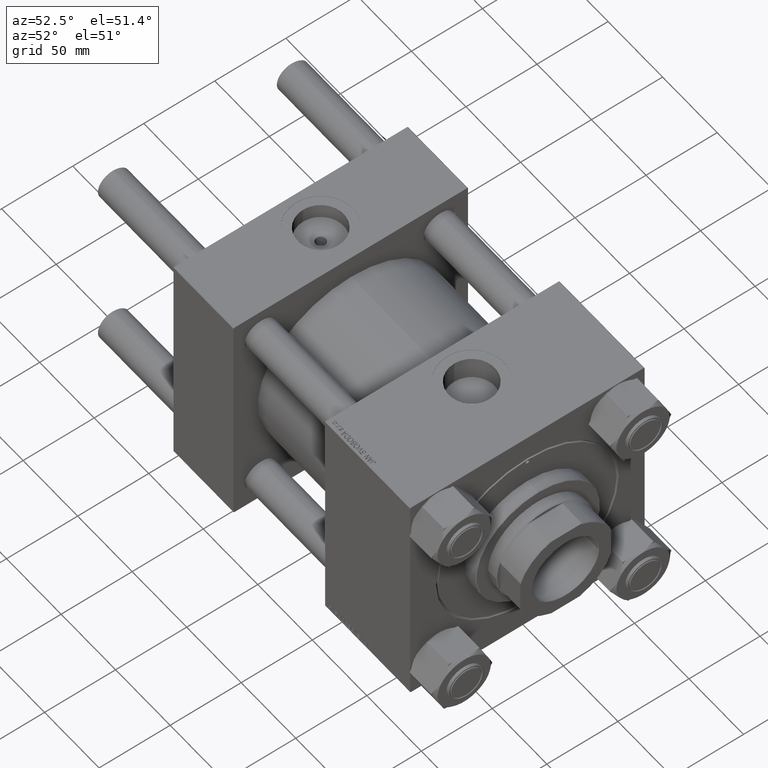
[diagram: clean part render]
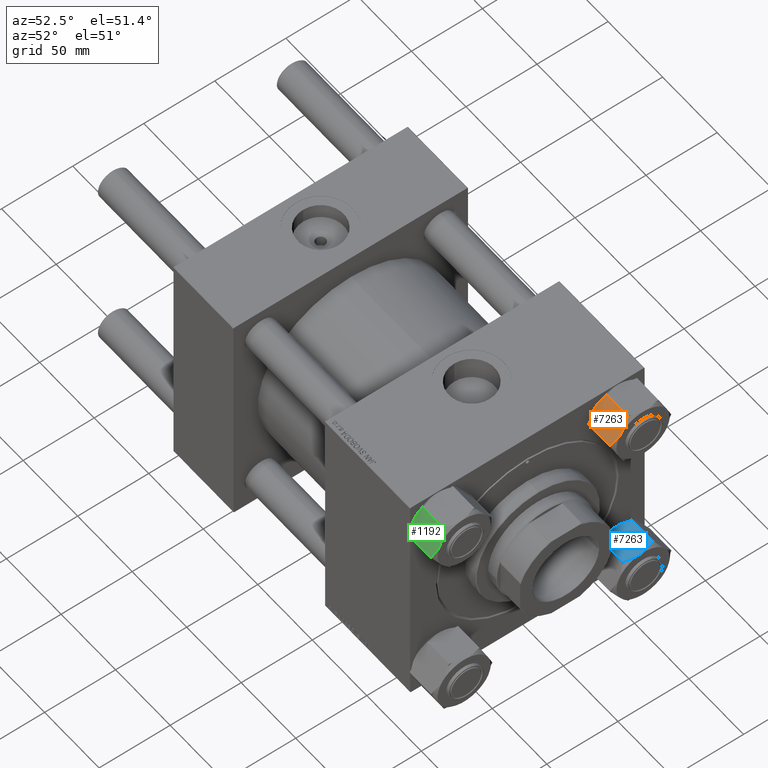
[diagram: same view with three faces highlighted in distinct colors, each labeled with its STEP entity id]
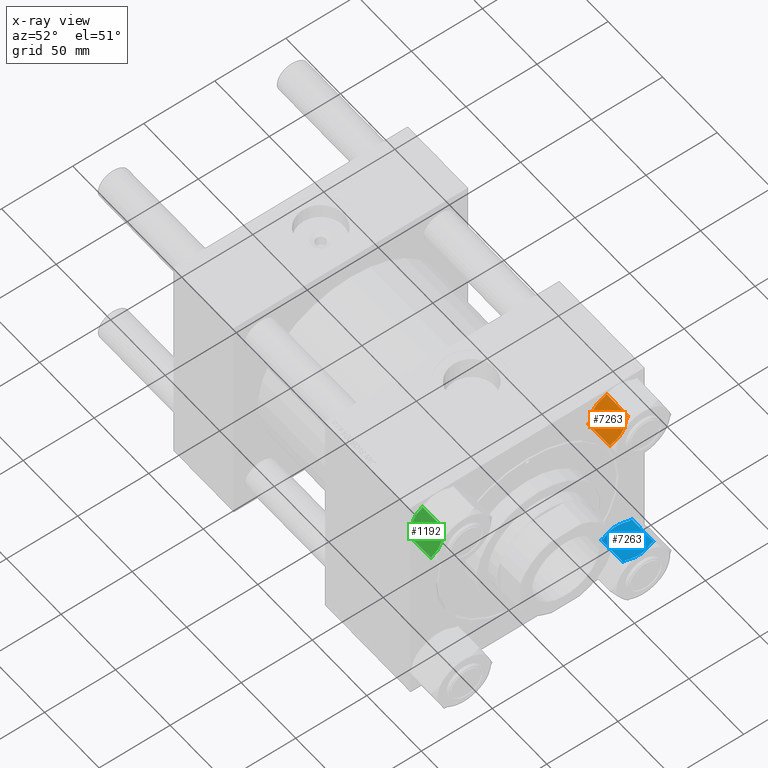
[diagram: x-ray of the same camera — body ghosted, the three highlighted faces saturated]
A machine part, auxiliary view with three faces highlighted in distinct colors.
The next image is the same camera in x-ray (body ghosted, the three faces saturated) — at least one of them is partly hidden behind the body in this view.
Their STEP definitions:

[orange] entity #7263 — the highlighted planar face has unit normal (0, 0.8135, -0.5816).
#313 = DIRECTION ( 'NONE',  ( 0.5000000000000004441, -0.8660254037844384856, 0.000000000000000000 ) ) ;
#1204 = VECTOR ( 'NONE', #22598, 1000.000000000000000 ) ;
#1591 = CARTESIAN_POINT ( 'NONE',  ( -16.60104632518791590, -8.693082765609052132, -0.01197337667082346013 ) ) ;
#1781 = LINE ( 'NONE', #17321, #11307 ) ;
#1925 = ORIENTED_EDGE ( 'NONE', *, *, #38229, .F. ) ;
#2962 = EDGE_CURVE ( 'NONE', #13458, #21548, #1781, .T. ) ;
#3219 = CARTESIAN_POINT ( 'NONE',  ( -14.68383736039109344, -12.01378610136367087, -23.76617792281659902 ) ) ;
#3776 = CARTESIAN_POINT ( 'NONE',  ( -21.62000000000000099, -1.258445848729200031E-15, -2.000000000000001776 ) ) ;
#4390 = CARTESIAN_POINT ( 'NONE',  ( -10.80999999999998096, -18.72346922981957817, -22.00000000000000000 ) ) ;
#4602 = VERTEX_POINT ( 'NONE', #39308 ) ;
#5158 = CARTESIAN_POINT ( 'NONE',  ( -16.98310883762006895, -8.031331082409149502, -23.99999999999999645 ) ) ;
#5585 = CARTESIAN_POINT ( 'NONE',  ( -13.58342913161265386, -13.91974906267479817, -0.7123487060405540028 ) ) ;
#5741 = DIRECTION ( 'NONE',  ( -0.5000000000000003331, 0.8660254037844383745, 0.000000000000000000 ) ) ;
#5953 = VERTEX_POINT ( 'NONE', #41405 ) ;
#7037 = CARTESIAN_POINT ( 'NONE',  ( -21.62000000000000099, -1.258445848729200031E-15, -22.00000000000000000 ) ) ;
#7194 = ORIENTED_EDGE ( 'NONE', *, *, #20094, .T. ) ;
#7263 = ADVANCED_FACE ( 'NONE', ( #41691 ), #49099, .F. ) ;
#7764 = CARTESIAN_POINT ( 'NONE',  ( -20.65611126068911219, -1.669504269329982415, -22.00000000000000000 ) ) ;
#8715 = LINE ( 'NONE', #31696, #45926 ) ;
#9232 = DIRECTION ( 'NONE',  ( 0.5000000000000004441, -0.8660254037844384856, 0.000000000000000000 ) ) ;
#9660 = CARTESIAN_POINT ( 'NONE',  ( -16.21499999999999275, -9.361734614909785535, 0.000000000000000000 ) ) ;
#10194 = DIRECTION ( 'NONE',  ( -0.5000000000000004441, 0.8660254037844384856, 0.000000000000000000 ) ) ;
#10196 = VERTEX_POINT ( 'NONE', #7764 ) ;
#10565 = DIRECTION ( 'NONE',  ( 0.8660254037844384856, 0.5000000000000004441, 0.000000000000000000 ) ) ;
#11307 = VECTOR ( 'NONE', #33649, 999.9999999999998863 ) ;
#11797 = EDGE_CURVE ( 'NONE', #12653, #34705, #24862, .T. ) ;
#12596 = VERTEX_POINT ( 'NONE', #35512 ) ;
#12653 = VERTEX_POINT ( 'NONE', #27863 ) ;
#13059 = CARTESIAN_POINT ( 'NONE',  ( -20.65611126068911219, -1.669504269329982415, -22.00000000000000000 ) ) ;
#13450 = EDGE_CURVE ( 'NONE', #34705, #5953, #8715, .T. ) ;
#13458 = VERTEX_POINT ( 'NONE', #4390 ) ;
#14232 = CARTESIAN_POINT ( 'NONE',  ( -13.21634051119548126, -14.55556520411771437, -0.9250850388961004978 ) ) ;
#14439 = CARTESIAN_POINT ( 'NONE',  ( -15.25296234352181557, -11.02803271472448010, -23.90516550165011367 ) ) ;
#14676 = CARTESIAN_POINT ( 'NONE',  ( -11.77388873931088220, -17.05396496048959420, -2.000000000000000000 ) ) ;
#15168 = ORIENTED_EDGE ( 'NONE', *, *, #33208, .F. ) ;
#16627 = CARTESIAN_POINT ( 'NONE',  ( -18.84657086838732098, -4.803720167144771125, -23.28765129395944555 ) ) ;
#16883 = CARTESIAN_POINT ( 'NONE',  ( -19.22845374672205665, -4.142279619328383511, -0.8936198542777903375 ) ) ;
#16884 = CARTESIAN_POINT ( 'NONE',  ( -19.94246781890513986, -2.905570968988129277, -22.58212083167677164 ) ) ;
#17321 = CARTESIAN_POINT ( 'NONE',  ( -10.80999999999998096, -18.72346922981957817, -22.00000000000000000 ) ) ;
#19016 = CARTESIAN_POINT ( 'NONE',  ( -15.82895367481207138, -10.03038646421052427, -23.98802662332916924 ) ) ;
#20094 = EDGE_CURVE ( 'NONE', #13458, #5953, #34334, .T. ) ;
#20727 = CARTESIAN_POINT ( 'NONE',  ( -20.30204076991166673, -2.282772348817363461, -22.30351413196914834 ) ) ;
#20774 = CARTESIAN_POINT ( 'NONE',  ( -11.77388873931088220, -17.05396496048959420, -22.00000000000000000 ) ) ;
#21548 = VERTEX_POINT ( 'NONE', #20774 ) ;
#21561 = ORIENTED_EDGE ( 'NONE', *, *, #13450, .F. ) ;
#22598 = DIRECTION ( 'NONE',  ( -0.000000000000000000, -0.000000000000000000, 1.000000000000000000 ) ) ;
#23117 = CARTESIAN_POINT ( 'NONE',  ( -16.02284832181302932, -9.694551084289219745, -23.99999999999998934 ) ) ;
#24862 = B_SPLINE_CURVE_WITH_KNOTS ( 'NONE', 3,
 ( #9660, #24991, #33634, #5585, #14232, #36701, #25235, #29810 ),
 .UNSPECIFIED., .F., .F.,
 ( 4, 2, 2, 4 ),
 ( 0.009109849294687024507, 0.01366157320126709478, 0.01593743515455713078, 0.01821329710784716852 ),
 .UNSPECIFIED. ) ;
#24991 = CARTESIAN_POINT ( 'NONE',  ( -15.44689116237992010, -10.69213814741042690, 1.084202172485503325E-16 ) ) ;
#25064 = CARTESIAN_POINT ( 'NONE',  ( -18.12021770021051736, -6.061800758665626176, -0.3703068632035674823 ) ) ;
#25235 = CARTESIAN_POINT ( 'NONE',  ( -12.12795923008832766, -16.44069688100221782, -1.696485868030862987 ) ) ;
#26434 = CARTESIAN_POINT ( 'NONE',  ( -10.80999999999998096, -18.72346922981957817, -24.00000000000000000 ) ) ;
#27863 = CARTESIAN_POINT ( 'NONE',  ( -16.21499999999999275, -9.361734614909785535, 0.000000000000000000 ) ) ;
#27994 = EDGE_CURVE ( 'NONE', #10196, #40149, #36742, .T. ) ;
#28582 = AXIS2_PLACEMENT_3D ( 'NONE', #45267, #10565, #5741 ) ;
#28894 = CARTESIAN_POINT ( 'NONE',  ( -17.17703765647816994, -7.695436515095090080, -0.09483449834989436666 ) ) ;
#29142 = CARTESIAN_POINT ( 'NONE',  ( -16.98598932500587111, -8.026341931906371130, -0.05945867712356565221 ) ) ;
#29810 = CARTESIAN_POINT ( 'NONE',  ( -11.77388873931088220, -17.05396496048959420, -2.000000000000000000 ) ) ;
#30480 = LINE ( 'NONE', #46036, #39350 ) ;
#30831 = B_SPLINE_CURVE_WITH_KNOTS ( 'NONE', 3,
 ( #45818, #45319, #33845, #38169, #3219, #14439, #37921, #19016, #23117, #34090 ),
 .UNSPECIFIED., .F., .F.,
 ( 4, 2, 2, 2, 4 ),
 ( 5.007809737522038475E-07, 0.004555175037830387977, 0.006832512166258704507, 0.007971180730472862339, 0.009109849294687026242 ),
 .UNSPECIFIED. ) ;
#31696 = CARTESIAN_POINT ( 'NONE',  ( -10.80999999999998096, -18.72346922981957817, -2.000000000000001776 ) ) ;
#32467 = CARTESIAN_POINT ( 'NONE',  ( -16.21499999999999275, -9.361734614909785535, -24.00000000000000000 ) ) ;
#32722 = CARTESIAN_POINT ( 'NONE',  ( -10.80999999999998096, -18.72346922981957817, -2.000000000000001776 ) ) ;
#33208 = EDGE_CURVE ( 'NONE', #12596, #12653, #45415, .T. ) ;
#33553 = EDGE_CURVE ( 'NONE', #21548, #4602, #30831, .T. ) ;
#33634 = CARTESIAN_POINT ( 'NONE',  ( -14.69400019531144785, -11.99618355493267785, -0.1908188403547944889 ) ) ;
#33649 = DIRECTION ( 'NONE',  ( -0.5000000000000004441, 0.8660254037844384856, 0.000000000000000000 ) ) ;
#33845 = CARTESIAN_POINT ( 'NONE',  ( -13.20154625327792530, -14.58118961049118845, -23.10638014572221621 ) ) ;
#33927 = CARTESIAN_POINT ( 'NONE',  ( -10.80999999999998096, -18.72346922981957817, -22.00000000000000000 ) ) ;
#34090 = CARTESIAN_POINT ( 'NONE',  ( -16.21499999999999275, -9.361734614909785535, -24.00000000000000000 ) ) ;
#34334 = LINE ( 'NONE', #26434, #1204 ) ;
#34705 = VERTEX_POINT ( 'NONE', #14676 ) ;
#35054 = DIRECTION ( 'NONE',  ( -0.000000000000000000, -0.000000000000000000, 1.000000000000000000 ) ) ;
#35512 = CARTESIAN_POINT ( 'NONE',  ( -20.65611126068911219, -1.669504269329982415, -2.000000000000000000 ) ) ;
#35932 = EDGE_CURVE ( 'NONE', #4602, #10196, #36148, .T. ) ;
#36021 = CARTESIAN_POINT ( 'NONE',  ( -17.73599980468853587, -6.727285674886896771, -23.80918115964520965 ) ) ;
#36148 = B_SPLINE_CURVE_WITH_KNOTS ( 'NONE', 3,
 ( #32467, #5158, #36021, #16627, #47769, #16884, #20727, #13059 ),
 .UNSPECIFIED., .F., .F.,
 ( 4, 2, 2, 4 ),
 ( 0.009109849294687026242, 0.01366157320126709651, 0.01593743515455713078, 0.01821329710784716852 ),
 .UNSPECIFIED. ) ;
#36698 = ORIENTED_EDGE ( 'NONE', *, *, #2962, .F. ) ;
#36701 = CARTESIAN_POINT ( 'NONE',  ( -12.48753218109484742, -15.81789826083144668, -1.417879168323226580 ) ) ;
#36742 = LINE ( 'NONE', #33927, #45481 ) ;
#36809 = ORIENTED_EDGE ( 'NONE', *, *, #35932, .F. ) ;
#36950 = ORIENTED_EDGE ( 'NONE', *, *, #42345, .F. ) ;
#37136 = ORIENTED_EDGE ( 'NONE', *, *, #33553, .F. ) ;
#37921 = CARTESIAN_POINT ( 'NONE',  ( -15.44401067499411262, -10.69712729791320527, -23.94054132287643455 ) ) ;
#38169 = CARTESIAN_POINT ( 'NONE',  ( -14.30978229978946636, -12.66166847115395022, -23.62969313679642980 ) ) ;
#38229 = EDGE_CURVE ( 'NONE', #49106, #12596, #48023, .T. ) ;
#39308 = CARTESIAN_POINT ( 'NONE',  ( -16.21499999999999275, -9.361734614909785535, -24.00000000000000000 ) ) ;
#39350 = VECTOR ( 'NONE', #35054, 1000.000000000000000 ) ;
#40149 = VERTEX_POINT ( 'NONE', #7037 ) ;
#40863 = CARTESIAN_POINT ( 'NONE',  ( -17.74616263960889739, -6.709683128455900203, -0.2338220771833977030 ) ) ;
#41405 = CARTESIAN_POINT ( 'NONE',  ( -10.80999999999998096, -18.72346922981957817, -2.000000000000001776 ) ) ;
#41691 = FACE_OUTER_BOUND ( 'NONE', #48563, .T. ) ;
#41960 = ORIENTED_EDGE ( 'NONE', *, *, #11797, .F. ) ;
#42345 = EDGE_CURVE ( 'NONE', #40149, #49106, #30480, .T. ) ;
#43935 = CARTESIAN_POINT ( 'NONE',  ( -19.94878361794603450, -2.894631684158906815, -1.393668941363774172 ) ) ;
#44687 = CARTESIAN_POINT ( 'NONE',  ( -16.21499999999999275, -9.361734614909785535, 0.000000000000000000 ) ) ;
#45267 = CARTESIAN_POINT ( 'NONE',  ( -10.80999999999998096, -18.72346922981957817, -24.00000000000000000 ) ) ;
#45319 = CARTESIAN_POINT ( 'NONE',  ( -12.48121638205395278, -15.82883754566066514, -22.60633105863622916 ) ) ;
#45415 = B_SPLINE_CURVE_WITH_KNOTS ( 'NONE', 3,
 ( #47768, #43935, #16883, #25064, #40863, #28894, #29142, #1591, #47507, #44687 ),
 .UNSPECIFIED., .F., .F.,
 ( 4, 2, 2, 2, 4 ),
 ( 5.007809737505383690E-07, 0.004555175037830387109, 0.006832512166258706242, 0.007971180730472865808, 0.009109849294687024507 ),
 .UNSPECIFIED. ) ;
#45481 = VECTOR ( 'NONE', #10194, 999.9999999999998863 ) ;
#45818 = CARTESIAN_POINT ( 'NONE',  ( -11.77388873931088220, -17.05396496048959420, -22.00000000000000000 ) ) ;
#45926 = VECTOR ( 'NONE', #313, 999.9999999999998863 ) ;
#46036 = CARTESIAN_POINT ( 'NONE',  ( -21.62000000000000099, -1.258445848729200031E-15, -24.00000000000000000 ) ) ;
#47507 = CARTESIAN_POINT ( 'NONE',  ( -16.40715167818695619, -9.028918145530353101, -3.049318610115475674E-17 ) ) ;
#47768 = CARTESIAN_POINT ( 'NONE',  ( -20.65611126068911219, -1.669504269329982415, -2.000000000000000000 ) ) ;
#47769 = CARTESIAN_POINT ( 'NONE',  ( -19.21365948880450247, -4.167904025701862913, -23.07491496110390017 ) ) ;
#48023 = LINE ( 'NONE', #32722, #48941 ) ;
#48563 = EDGE_LOOP ( 'NONE', ( #36698, #7194, #21561, #41960, #15168, #1925, #36950, #50174, #36809, #37136 ) ) ;
#48941 = VECTOR ( 'NONE', #9232, 999.9999999999998863 ) ;
#49099 = PLANE ( 'NONE',  #28582 ) ;
#49106 = VERTEX_POINT ( 'NONE', #3776 ) ;
#50174 = ORIENTED_EDGE ( 'NONE', *, *, #27994, .F. ) ;

[blue] entity #7263 — the highlighted planar face has unit normal (-0, 0.097, -0.9953).
#313 = DIRECTION ( 'NONE',  ( 0.5000000000000004441, -0.8660254037844384856, 0.000000000000000000 ) ) ;
#1204 = VECTOR ( 'NONE', #22598, 1000.000000000000000 ) ;
#1591 = CARTESIAN_POINT ( 'NONE',  ( -16.60104632518791590, -8.693082765609052132, -0.01197337667082346013 ) ) ;
#1781 = LINE ( 'NONE', #17321, #11307 ) ;
#1925 = ORIENTED_EDGE ( 'NONE', *, *, #38229, .F. ) ;
#2962 = EDGE_CURVE ( 'NONE', #13458, #21548, #1781, .T. ) ;
#3219 = CARTESIAN_POINT ( 'NONE',  ( -14.68383736039109344, -12.01378610136367087, -23.76617792281659902 ) ) ;
#3776 = CARTESIAN_POINT ( 'NONE',  ( -21.62000000000000099, -1.258445848729200031E-15, -2.000000000000001776 ) ) ;
#4390 = CARTESIAN_POINT ( 'NONE',  ( -10.80999999999998096, -18.72346922981957817, -22.00000000000000000 ) ) ;
#4602 = VERTEX_POINT ( 'NONE', #39308 ) ;
#5158 = CARTESIAN_POINT ( 'NONE',  ( -16.98310883762006895, -8.031331082409149502, -23.99999999999999645 ) ) ;
#5585 = CARTESIAN_POINT ( 'NONE',  ( -13.58342913161265386, -13.91974906267479817, -0.7123487060405540028 ) ) ;
#5741 = DIRECTION ( 'NONE',  ( -0.5000000000000003331, 0.8660254037844383745, 0.000000000000000000 ) ) ;
#5953 = VERTEX_POINT ( 'NONE', #41405 ) ;
#7037 = CARTESIAN_POINT ( 'NONE',  ( -21.62000000000000099, -1.258445848729200031E-15, -22.00000000000000000 ) ) ;
#7194 = ORIENTED_EDGE ( 'NONE', *, *, #20094, .T. ) ;
#7263 = ADVANCED_FACE ( 'NONE', ( #41691 ), #49099, .F. ) ;
#7764 = CARTESIAN_POINT ( 'NONE',  ( -20.65611126068911219, -1.669504269329982415, -22.00000000000000000 ) ) ;
#8715 = LINE ( 'NONE', #31696, #45926 ) ;
#9232 = DIRECTION ( 'NONE',  ( 0.5000000000000004441, -0.8660254037844384856, 0.000000000000000000 ) ) ;
#9660 = CARTESIAN_POINT ( 'NONE',  ( -16.21499999999999275, -9.361734614909785535, 0.000000000000000000 ) ) ;
#10194 = DIRECTION ( 'NONE',  ( -0.5000000000000004441, 0.8660254037844384856, 0.000000000000000000 ) ) ;
#10196 = VERTEX_POINT ( 'NONE', #7764 ) ;
#10565 = DIRECTION ( 'NONE',  ( 0.8660254037844384856, 0.5000000000000004441, 0.000000000000000000 ) ) ;
#11307 = VECTOR ( 'NONE', #33649, 999.9999999999998863 ) ;
#11797 = EDGE_CURVE ( 'NONE', #12653, #34705, #24862, .T. ) ;
#12596 = VERTEX_POINT ( 'NONE', #35512 ) ;
#12653 = VERTEX_POINT ( 'NONE', #27863 ) ;
#13059 = CARTESIAN_POINT ( 'NONE',  ( -20.65611126068911219, -1.669504269329982415, -22.00000000000000000 ) ) ;
#13450 = EDGE_CURVE ( 'NONE', #34705, #5953, #8715, .T. ) ;
#13458 = VERTEX_POINT ( 'NONE', #4390 ) ;
#14232 = CARTESIAN_POINT ( 'NONE',  ( -13.21634051119548126, -14.55556520411771437, -0.9250850388961004978 ) ) ;
#14439 = CARTESIAN_POINT ( 'NONE',  ( -15.25296234352181557, -11.02803271472448010, -23.90516550165011367 ) ) ;
#14676 = CARTESIAN_POINT ( 'NONE',  ( -11.77388873931088220, -17.05396496048959420, -2.000000000000000000 ) ) ;
#15168 = ORIENTED_EDGE ( 'NONE', *, *, #33208, .F. ) ;
#16627 = CARTESIAN_POINT ( 'NONE',  ( -18.84657086838732098, -4.803720167144771125, -23.28765129395944555 ) ) ;
#16883 = CARTESIAN_POINT ( 'NONE',  ( -19.22845374672205665, -4.142279619328383511, -0.8936198542777903375 ) ) ;
#16884 = CARTESIAN_POINT ( 'NONE',  ( -19.94246781890513986, -2.905570968988129277, -22.58212083167677164 ) ) ;
#17321 = CARTESIAN_POINT ( 'NONE',  ( -10.80999999999998096, -18.72346922981957817, -22.00000000000000000 ) ) ;
#19016 = CARTESIAN_POINT ( 'NONE',  ( -15.82895367481207138, -10.03038646421052427, -23.98802662332916924 ) ) ;
#20094 = EDGE_CURVE ( 'NONE', #13458, #5953, #34334, .T. ) ;
#20727 = CARTESIAN_POINT ( 'NONE',  ( -20.30204076991166673, -2.282772348817363461, -22.30351413196914834 ) ) ;
#20774 = CARTESIAN_POINT ( 'NONE',  ( -11.77388873931088220, -17.05396496048959420, -22.00000000000000000 ) ) ;
#21548 = VERTEX_POINT ( 'NONE', #20774 ) ;
#21561 = ORIENTED_EDGE ( 'NONE', *, *, #13450, .F. ) ;
#22598 = DIRECTION ( 'NONE',  ( -0.000000000000000000, -0.000000000000000000, 1.000000000000000000 ) ) ;
#23117 = CARTESIAN_POINT ( 'NONE',  ( -16.02284832181302932, -9.694551084289219745, -23.99999999999998934 ) ) ;
#24862 = B_SPLINE_CURVE_WITH_KNOTS ( 'NONE', 3,
 ( #9660, #24991, #33634, #5585, #14232, #36701, #25235, #29810 ),
 .UNSPECIFIED., .F., .F.,
 ( 4, 2, 2, 4 ),
 ( 0.009109849294687024507, 0.01366157320126709478, 0.01593743515455713078, 0.01821329710784716852 ),
 .UNSPECIFIED. ) ;
#24991 = CARTESIAN_POINT ( 'NONE',  ( -15.44689116237992010, -10.69213814741042690, 1.084202172485503325E-16 ) ) ;
#25064 = CARTESIAN_POINT ( 'NONE',  ( -18.12021770021051736, -6.061800758665626176, -0.3703068632035674823 ) ) ;
#25235 = CARTESIAN_POINT ( 'NONE',  ( -12.12795923008832766, -16.44069688100221782, -1.696485868030862987 ) ) ;
#26434 = CARTESIAN_POINT ( 'NONE',  ( -10.80999999999998096, -18.72346922981957817, -24.00000000000000000 ) ) ;
#27863 = CARTESIAN_POINT ( 'NONE',  ( -16.21499999999999275, -9.361734614909785535, 0.000000000000000000 ) ) ;
#27994 = EDGE_CURVE ( 'NONE', #10196, #40149, #36742, .T. ) ;
#28582 = AXIS2_PLACEMENT_3D ( 'NONE', #45267, #10565, #5741 ) ;
#28894 = CARTESIAN_POINT ( 'NONE',  ( -17.17703765647816994, -7.695436515095090080, -0.09483449834989436666 ) ) ;
#29142 = CARTESIAN_POINT ( 'NONE',  ( -16.98598932500587111, -8.026341931906371130, -0.05945867712356565221 ) ) ;
#29810 = CARTESIAN_POINT ( 'NONE',  ( -11.77388873931088220, -17.05396496048959420, -2.000000000000000000 ) ) ;
#30480 = LINE ( 'NONE', #46036, #39350 ) ;
#30831 = B_SPLINE_CURVE_WITH_KNOTS ( 'NONE', 3,
 ( #45818, #45319, #33845, #38169, #3219, #14439, #37921, #19016, #23117, #34090 ),
 .UNSPECIFIED., .F., .F.,
 ( 4, 2, 2, 2, 4 ),
 ( 5.007809737522038475E-07, 0.004555175037830387977, 0.006832512166258704507, 0.007971180730472862339, 0.009109849294687026242 ),
 .UNSPECIFIED. ) ;
#31696 = CARTESIAN_POINT ( 'NONE',  ( -10.80999999999998096, -18.72346922981957817, -2.000000000000001776 ) ) ;
#32467 = CARTESIAN_POINT ( 'NONE',  ( -16.21499999999999275, -9.361734614909785535, -24.00000000000000000 ) ) ;
#32722 = CARTESIAN_POINT ( 'NONE',  ( -10.80999999999998096, -18.72346922981957817, -2.000000000000001776 ) ) ;
#33208 = EDGE_CURVE ( 'NONE', #12596, #12653, #45415, .T. ) ;
#33553 = EDGE_CURVE ( 'NONE', #21548, #4602, #30831, .T. ) ;
#33634 = CARTESIAN_POINT ( 'NONE',  ( -14.69400019531144785, -11.99618355493267785, -0.1908188403547944889 ) ) ;
#33649 = DIRECTION ( 'NONE',  ( -0.5000000000000004441, 0.8660254037844384856, 0.000000000000000000 ) ) ;
#33845 = CARTESIAN_POINT ( 'NONE',  ( -13.20154625327792530, -14.58118961049118845, -23.10638014572221621 ) ) ;
#33927 = CARTESIAN_POINT ( 'NONE',  ( -10.80999999999998096, -18.72346922981957817, -22.00000000000000000 ) ) ;
#34090 = CARTESIAN_POINT ( 'NONE',  ( -16.21499999999999275, -9.361734614909785535, -24.00000000000000000 ) ) ;
#34334 = LINE ( 'NONE', #26434, #1204 ) ;
#34705 = VERTEX_POINT ( 'NONE', #14676 ) ;
#35054 = DIRECTION ( 'NONE',  ( -0.000000000000000000, -0.000000000000000000, 1.000000000000000000 ) ) ;
#35512 = CARTESIAN_POINT ( 'NONE',  ( -20.65611126068911219, -1.669504269329982415, -2.000000000000000000 ) ) ;
#35932 = EDGE_CURVE ( 'NONE', #4602, #10196, #36148, .T. ) ;
#36021 = CARTESIAN_POINT ( 'NONE',  ( -17.73599980468853587, -6.727285674886896771, -23.80918115964520965 ) ) ;
#36148 = B_SPLINE_CURVE_WITH_KNOTS ( 'NONE', 3,
 ( #32467, #5158, #36021, #16627, #47769, #16884, #20727, #13059 ),
 .UNSPECIFIED., .F., .F.,
 ( 4, 2, 2, 4 ),
 ( 0.009109849294687026242, 0.01366157320126709651, 0.01593743515455713078, 0.01821329710784716852 ),
 .UNSPECIFIED. ) ;
#36698 = ORIENTED_EDGE ( 'NONE', *, *, #2962, .F. ) ;
#36701 = CARTESIAN_POINT ( 'NONE',  ( -12.48753218109484742, -15.81789826083144668, -1.417879168323226580 ) ) ;
#36742 = LINE ( 'NONE', #33927, #45481 ) ;
#36809 = ORIENTED_EDGE ( 'NONE', *, *, #35932, .F. ) ;
#36950 = ORIENTED_EDGE ( 'NONE', *, *, #42345, .F. ) ;
#37136 = ORIENTED_EDGE ( 'NONE', *, *, #33553, .F. ) ;
#37921 = CARTESIAN_POINT ( 'NONE',  ( -15.44401067499411262, -10.69712729791320527, -23.94054132287643455 ) ) ;
#38169 = CARTESIAN_POINT ( 'NONE',  ( -14.30978229978946636, -12.66166847115395022, -23.62969313679642980 ) ) ;
#38229 = EDGE_CURVE ( 'NONE', #49106, #12596, #48023, .T. ) ;
#39308 = CARTESIAN_POINT ( 'NONE',  ( -16.21499999999999275, -9.361734614909785535, -24.00000000000000000 ) ) ;
#39350 = VECTOR ( 'NONE', #35054, 1000.000000000000000 ) ;
#40149 = VERTEX_POINT ( 'NONE', #7037 ) ;
#40863 = CARTESIAN_POINT ( 'NONE',  ( -17.74616263960889739, -6.709683128455900203, -0.2338220771833977030 ) ) ;
#41405 = CARTESIAN_POINT ( 'NONE',  ( -10.80999999999998096, -18.72346922981957817, -2.000000000000001776 ) ) ;
#41691 = FACE_OUTER_BOUND ( 'NONE', #48563, .T. ) ;
#41960 = ORIENTED_EDGE ( 'NONE', *, *, #11797, .F. ) ;
#42345 = EDGE_CURVE ( 'NONE', #40149, #49106, #30480, .T. ) ;
#43935 = CARTESIAN_POINT ( 'NONE',  ( -19.94878361794603450, -2.894631684158906815, -1.393668941363774172 ) ) ;
#44687 = CARTESIAN_POINT ( 'NONE',  ( -16.21499999999999275, -9.361734614909785535, 0.000000000000000000 ) ) ;
#45267 = CARTESIAN_POINT ( 'NONE',  ( -10.80999999999998096, -18.72346922981957817, -24.00000000000000000 ) ) ;
#45319 = CARTESIAN_POINT ( 'NONE',  ( -12.48121638205395278, -15.82883754566066514, -22.60633105863622916 ) ) ;
#45415 = B_SPLINE_CURVE_WITH_KNOTS ( 'NONE', 3,
 ( #47768, #43935, #16883, #25064, #40863, #28894, #29142, #1591, #47507, #44687 ),
 .UNSPECIFIED., .F., .F.,
 ( 4, 2, 2, 2, 4 ),
 ( 5.007809737505383690E-07, 0.004555175037830387109, 0.006832512166258706242, 0.007971180730472865808, 0.009109849294687024507 ),
 .UNSPECIFIED. ) ;
#45481 = VECTOR ( 'NONE', #10194, 999.9999999999998863 ) ;
#45818 = CARTESIAN_POINT ( 'NONE',  ( -11.77388873931088220, -17.05396496048959420, -22.00000000000000000 ) ) ;
#45926 = VECTOR ( 'NONE', #313, 999.9999999999998863 ) ;
#46036 = CARTESIAN_POINT ( 'NONE',  ( -21.62000000000000099, -1.258445848729200031E-15, -24.00000000000000000 ) ) ;
#47507 = CARTESIAN_POINT ( 'NONE',  ( -16.40715167818695619, -9.028918145530353101, -3.049318610115475674E-17 ) ) ;
#47768 = CARTESIAN_POINT ( 'NONE',  ( -20.65611126068911219, -1.669504269329982415, -2.000000000000000000 ) ) ;
#47769 = CARTESIAN_POINT ( 'NONE',  ( -19.21365948880450247, -4.167904025701862913, -23.07491496110390017 ) ) ;
#48023 = LINE ( 'NONE', #32722, #48941 ) ;
#48563 = EDGE_LOOP ( 'NONE', ( #36698, #7194, #21561, #41960, #15168, #1925, #36950, #50174, #36809, #37136 ) ) ;
#48941 = VECTOR ( 'NONE', #9232, 999.9999999999998863 ) ;
#49099 = PLANE ( 'NONE',  #28582 ) ;
#49106 = VERTEX_POINT ( 'NONE', #3776 ) ;
#50174 = ORIENTED_EDGE ( 'NONE', *, *, #27994, .F. ) ;

[green] entity #1192 — the highlighted planar face has unit normal (-0, 0.9104, -0.4137).
#148 = DIRECTION ( 'NONE',  ( -0.000000000000000000, -0.000000000000000000, 1.000000000000000000 ) ) ;
#1192 = ADVANCED_FACE ( 'NONE', ( #33199 ), #48004, .F. ) ;
#1320 = DIRECTION ( 'NONE',  ( 8.023697853731762712E-16, -1.000000000000000000, 0.000000000000000000 ) ) ;
#2384 = CARTESIAN_POINT ( 'NONE',  ( 5.284196261866782152, 18.72346922981958528, -23.28188187721269742 ) ) ;
#3453 = CARTESIAN_POINT ( 'NONE',  ( -8.882222521378199787, 18.72346922981957107, -2.000000000000000000 ) ) ;
#4073 = CARTESIAN_POINT ( 'NONE',  ( -10.81000000000001471, 18.72346922981956752, -22.00000000000000000 ) ) ;
#4190 = CARTESIAN_POINT ( 'NONE',  ( 0.3838633933595110292, 18.72346922981957817, -23.99999999999998224 ) ) ;
#5012 = ORIENTED_EDGE ( 'NONE', *, *, #25612, .F. ) ;
#5132 = VECTOR ( 'NONE', #148, 1000.000000000000000 ) ;
#5915 = CARTESIAN_POINT ( 'NONE',  ( -10.81000000000001471, 18.72346922981956752, -2.000000000000001776 ) ) ;
#6030 = VERTEX_POINT ( 'NONE', #18167 ) ;
#6175 = EDGE_CURVE ( 'NONE', #9826, #15401, #15858, .T. ) ;
#6773 = CARTESIAN_POINT ( 'NONE',  ( -1.502314598737160570E-14, 18.72346922981957817, 0.000000000000000000 ) ) ;
#6864 = VECTOR ( 'NONE', #15124, 1000.000000000000000 ) ;
#7025 = CARTESIAN_POINT ( 'NONE',  ( -6.014330298555132792, 18.72346922981957107, -0.9304907305360451408 ) ) ;
#7048 = CARTESIAN_POINT ( 'NONE',  ( 6.004110770064962743, 18.72346922981957817, -0.9271504873037269556 ) ) ;
#7316 = ORIENTED_EDGE ( 'NONE', *, *, #15736, .T. ) ;
#7705 = ORIENTED_EDGE ( 'NONE', *, *, #34736, .F. ) ;
#8455 = CARTESIAN_POINT ( 'NONE',  ( -8.180319050237788048, 18.72346922981957107, -22.30084069178079176 ) ) ;
#8623 = VERTEX_POINT ( 'NONE', #37254 ) ;
#8876 = B_SPLINE_CURVE_WITH_KNOTS ( 'NONE', 3,
 ( #16415, #4190, #39891, #35314, #20510, #14098, #16922, #2384, #32508, #43977, #44731, #21520 ),
 .UNSPECIFIED., .F., .F.,
 ( 4, 2, 2, 2, 2, 4 ),
 ( 0.03829011598937170219, 0.03943115666170205619, 0.04057219733403241019, 0.04285427867869311819, 0.04513636002335383313, 0.04741844136801454113 ),
 .UNSPECIFIED. ) ;
#9826 = VERTEX_POINT ( 'NONE', #40460 ) ;
#10121 = CARTESIAN_POINT ( 'NONE',  ( -1.502314598737160570E-14, 18.72346922981957817, 0.000000000000000000 ) ) ;
#11830 = CARTESIAN_POINT ( 'NONE',  ( -10.81000000000001471, 18.72346922981956752, -2.000000000000001776 ) ) ;
#11885 = LINE ( 'NONE', #27956, #5132 ) ;
#12840 = CARTESIAN_POINT ( 'NONE',  ( 8.882222521378167812, 18.72346922981958528, -22.00000000000000000 ) ) ;
#13790 = CARTESIAN_POINT ( 'NONE',  ( -10.81000000000001471, 18.72346922981956752, -24.00000000000000000 ) ) ;
#13810 = DIRECTION ( 'NONE',  ( -1.000000000000000000, -8.023697853731762712E-16, 0.000000000000000000 ) ) ;
#14098 = CARTESIAN_POINT ( 'NONE',  ( 3.058371725687332621, 18.72346922981957817, -23.76678570710492266 ) ) ;
#15124 = DIRECTION ( 'NONE',  ( 1.000000000000000000, 8.023697853731762712E-16, 0.000000000000000000 ) ) ;
#15401 = VERTEX_POINT ( 'NONE', #18583 ) ;
#15671 = EDGE_CURVE ( 'NONE', #17283, #8623, #27855, .T. ) ;
#15736 = EDGE_CURVE ( 'NONE', #41936, #17977, #11885, .T. ) ;
#15858 = LINE ( 'NONE', #31437, #39127 ) ;
#15899 = ORIENTED_EDGE ( 'NONE', *, *, #31371, .F. ) ;
#16415 = CARTESIAN_POINT ( 'NONE',  ( -1.502314598737160570E-14, 18.72346922981957817, -24.00000000000000000 ) ) ;
#16862 = DIRECTION ( 'NONE',  ( 1.000000000000000000, 8.023697853731762712E-16, 0.000000000000000000 ) ) ;
#16920 = ORIENTED_EDGE ( 'NONE', *, *, #6175, .F. ) ;
#16922 = CARTESIAN_POINT ( 'NONE',  ( 3.806221811192755933, 18.72346922981958528, -23.63054087581592810 ) ) ;
#17283 = VERTEX_POINT ( 'NONE', #48900 ) ;
#17395 = ORIENTED_EDGE ( 'NONE', *, *, #29295, .F. ) ;
#17844 = ORIENTED_EDGE ( 'NONE', *, *, #18122, .F. ) ;
#17977 = VERTEX_POINT ( 'NONE', #26112 ) ;
#18122 = EDGE_CURVE ( 'NONE', #21397, #6030, #48359, .T. ) ;
#18167 = CARTESIAN_POINT ( 'NONE',  ( -1.502314598737160570E-14, 18.72346922981957817, -24.00000000000000000 ) ) ;
#18583 = CARTESIAN_POINT ( 'NONE',  ( 10.80999999999998629, 18.72346922981958528, -2.000000000000001776 ) ) ;
#18618 = EDGE_CURVE ( 'NONE', #24608, #9826, #19370, .T. ) ;
#19027 = CARTESIAN_POINT ( 'NONE',  ( 1.538851192155953340, 18.72346922981958173, -1.895998549134026195E-14 ) ) ;
#19257 = CARTESIAN_POINT ( 'NONE',  ( -8.177288578347846837, 18.72346922981957462, -1.697860426966554925 ) ) ;
#19370 = LINE ( 'NONE', #4073, #24000 ) ;
#19512 = CARTESIAN_POINT ( 'NONE',  ( -7.459573834530397463, 18.72346922981957107, -1.419798007050268929 ) ) ;
#19989 = CARTESIAN_POINT ( 'NONE',  ( -8.882222521378199787, 18.72346922981957107, -2.000000000000000000 ) ) ;
#20510 = CARTESIAN_POINT ( 'NONE',  ( 1.921304447834779605, 18.72346922981957817, -23.90544093450552765 ) ) ;
#20940 = EDGE_LOOP ( 'NONE', ( #34054, #7316, #15899, #7705, #44556, #17395, #16920, #41928, #5012, #17844 ) ) ;
#21397 = VERTEX_POINT ( 'NONE', #39648 ) ;
#21520 = CARTESIAN_POINT ( 'NONE',  ( 8.882222521378167812, 18.72346922981958528, -22.00000000000000000 ) ) ;
#24000 = VECTOR ( 'NONE', #24729, 1000.000000000000000 ) ;
#24034 = CARTESIAN_POINT ( 'NONE',  ( -7.462432408233326875, 18.72346922981957107, -22.57935330046602118 ) ) ;
#24608 = VERTEX_POINT ( 'NONE', #12840 ) ;
#24729 = DIRECTION ( 'NONE',  ( 1.000000000000000000, 8.023697853731762712E-16, 0.000000000000000000 ) ) ;
#25612 = EDGE_CURVE ( 'NONE', #6030, #24608, #8876, .T. ) ;
#25968 = VECTOR ( 'NONE', #13810, 1000.000000000000000 ) ;
#26112 = CARTESIAN_POINT ( 'NONE',  ( -10.81000000000001471, 18.72346922981956752, -2.000000000000001776 ) ) ;
#26708 = CARTESIAN_POINT ( 'NONE',  ( 3.046460787050262908, 18.72346922981958528, -0.1914528163787014292 ) ) ;
#26934 = CARTESIAN_POINT ( 'NONE',  ( -0.7711943830714006465, 18.72346922981957462, -0.01195010307163931612 ) ) ;
#27411 = DIRECTION ( 'NONE',  ( -1.000000000000000000, -8.023697853731762712E-16, 0.000000000000000000 ) ) ;
#27855 = B_SPLINE_CURVE_WITH_KNOTS ( 'NONE', 3,
 ( #34609, #42004, #41504, #7048, #30529, #26708, #19027, #10121 ),
 .UNSPECIFIED., .F., .F.,
 ( 4, 2, 2, 4 ),
 ( 0.02914159164821654435, 0.03142872273350533208, 0.03371585381879412674, 0.03829011598937170913 ),
 .UNSPECIFIED. ) ;
#27860 = CARTESIAN_POINT ( 'NONE',  ( -8.882222521378199787, 18.72346922981957107, -22.00000000000000000 ) ) ;
#27956 = CARTESIAN_POINT ( 'NONE',  ( -10.81000000000001471, 18.72346922981956752, -24.00000000000000000 ) ) ;
#28374 = VECTOR ( 'NONE', #27411, 1000.000000000000000 ) ;
#29295 = EDGE_CURVE ( 'NONE', #15401, #17283, #44442, .T. ) ;
#30529 = CARTESIAN_POINT ( 'NONE',  ( 5.269460841173438048, 18.72346922981958173, -0.7140404030614316833 ) ) ;
#31186 = CARTESIAN_POINT ( 'NONE',  ( -5.269460841173470023, 18.72346922981956752, -23.28595959693856798 ) ) ;
#31371 = EDGE_CURVE ( 'NONE', #47673, #17977, #46782, .T. ) ;
#31437 = CARTESIAN_POINT ( 'NONE',  ( 10.80999999999998629, 18.72346922981958528, -24.00000000000000000 ) ) ;
#32508 = CARTESIAN_POINT ( 'NONE',  ( 6.014330298555108811, 18.72346922981958528, -23.06950926946394631 ) ) ;
#33199 = FACE_OUTER_BOUND ( 'NONE', #20940, .T. ) ;
#34054 = ORIENTED_EDGE ( 'NONE', *, *, #48520, .F. ) ;
#34609 = CARTESIAN_POINT ( 'NONE',  ( 8.882222521378167812, 18.72346922981958528, -2.000000000000000000 ) ) ;
#34736 = EDGE_CURVE ( 'NONE', #8623, #47673, #36256, .T. ) ;
#35314 = CARTESIAN_POINT ( 'NONE',  ( 1.539734355582345060, 18.72346922981957817, -23.94071174619770304 ) ) ;
#36256 = B_SPLINE_CURVE_WITH_KNOTS ( 'NONE', 3,
 ( #6773, #38407, #26934, #42481, #37906, #50395, #46817, #46059, #7025, #19512, #19257, #3453 ),
 .UNSPECIFIED., .F., .F.,
 ( 4, 2, 2, 2, 2, 4 ),
 ( 0.03829011598937170913, 0.03943115666170206313, 0.04057219733403241713, 0.04285427867869312513, 0.04513636002335383313, 0.04741844136801454113 ),
 .UNSPECIFIED. ) ;
#36540 = AXIS2_PLACEMENT_3D ( 'NONE', #13790, #1320, #16862 ) ;
#37254 = CARTESIAN_POINT ( 'NONE',  ( -1.502314598737160570E-14, 18.72346922981957817, 0.000000000000000000 ) ) ;
#37906 = CARTESIAN_POINT ( 'NONE',  ( -1.921304447834809803, 18.72346922981957462, -0.09455906549447051779 ) ) ;
#38407 = CARTESIAN_POINT ( 'NONE',  ( -0.3838633933595416159, 18.72346922981957462, -1.912487457173910329E-14 ) ) ;
#38442 = CARTESIAN_POINT ( 'NONE',  ( -10.81000000000001471, 18.72346922981956752, -22.00000000000000000 ) ) ;
#39127 = VECTOR ( 'NONE', #46987, 1000.000000000000000 ) ;
#39648 = CARTESIAN_POINT ( 'NONE',  ( -8.882222521378199787, 18.72346922981957107, -22.00000000000000000 ) ) ;
#39891 = CARTESIAN_POINT ( 'NONE',  ( 0.7711943830713722248, 18.72346922981957817, -23.98804989692836998 ) ) ;
#40460 = CARTESIAN_POINT ( 'NONE',  ( 10.80999999999998629, 18.72346922981958528, -22.00000000000000000 ) ) ;
#41504 = CARTESIAN_POINT ( 'NONE',  ( 7.462432408233299341, 18.72346922981958528, -1.420646699533979262 ) ) ;
#41928 = ORIENTED_EDGE ( 'NONE', *, *, #18618, .F. ) ;
#41936 = VERTEX_POINT ( 'NONE', #38442 ) ;
#42004 = CARTESIAN_POINT ( 'NONE',  ( 8.180319050237757850, 18.72346922981958528, -1.699159308219207798 ) ) ;
#42425 = LINE ( 'NONE', #45746, #6864 ) ;
#42481 = CARTESIAN_POINT ( 'NONE',  ( -1.539734355582373038, 18.72346922981957817, -0.05928825380230225151 ) ) ;
#42664 = CARTESIAN_POINT ( 'NONE',  ( -1.538851192155984204, 18.72346922981958173, -23.99999999999998934 ) ) ;
#43977 = CARTESIAN_POINT ( 'NONE',  ( 7.459573834530374370, 18.72346922981958173, -22.58020199294972130 ) ) ;
#44442 = LINE ( 'NONE', #5915, #25968 ) ;
#44556 = ORIENTED_EDGE ( 'NONE', *, *, #15671, .F. ) ;
#44731 = CARTESIAN_POINT ( 'NONE',  ( 8.177288578347823744, 18.72346922981958883, -22.30213957303345396 ) ) ;
#45746 = CARTESIAN_POINT ( 'NONE',  ( -10.81000000000001471, 18.72346922981956752, -22.00000000000000000 ) ) ;
#46059 = CARTESIAN_POINT ( 'NONE',  ( -5.284196261866802580, 18.72346922981957107, -0.7181181227872970307 ) ) ;
#46742 = CARTESIAN_POINT ( 'NONE',  ( -3.046460787050294439, 18.72346922981957817, -23.80854718362129319 ) ) ;
#46782 = LINE ( 'NONE', #11830, #28374 ) ;
#46817 = CARTESIAN_POINT ( 'NONE',  ( -3.806221811192781246, 18.72346922981957107, -0.3694591241840637919 ) ) ;
#46987 = DIRECTION ( 'NONE',  ( -0.000000000000000000, -0.000000000000000000, 1.000000000000000000 ) ) ;
#47673 = VERTEX_POINT ( 'NONE', #19989 ) ;
#48004 = PLANE ( 'NONE',  #36540 ) ;
#48359 = B_SPLINE_CURVE_WITH_KNOTS ( 'NONE', 3,
 ( #27860, #8455, #24034, #50080, #31186, #46742, #42664, #50325 ),
 .UNSPECIFIED., .F., .F.,
 ( 4, 2, 2, 4 ),
 ( 0.02914159164821654088, 0.03142872273350533208, 0.03371585381879411980, 0.03829011598937170219 ),
 .UNSPECIFIED. ) ;
#48520 = EDGE_CURVE ( 'NONE', #41936, #21397, #42425, .T. ) ;
#48900 = CARTESIAN_POINT ( 'NONE',  ( 8.882222521378167812, 18.72346922981958528, -2.000000000000000000 ) ) ;
#50080 = CARTESIAN_POINT ( 'NONE',  ( -6.004110770064989389, 18.72346922981956396, -23.07284951269626561 ) ) ;
#50325 = CARTESIAN_POINT ( 'NONE',  ( -1.502314598737160570E-14, 18.72346922981957817, -24.00000000000000000 ) ) ;
#50395 = CARTESIAN_POINT ( 'NONE',  ( -3.058371725687361486, 18.72346922981957462, -0.2332142928950868555 ) ) ;